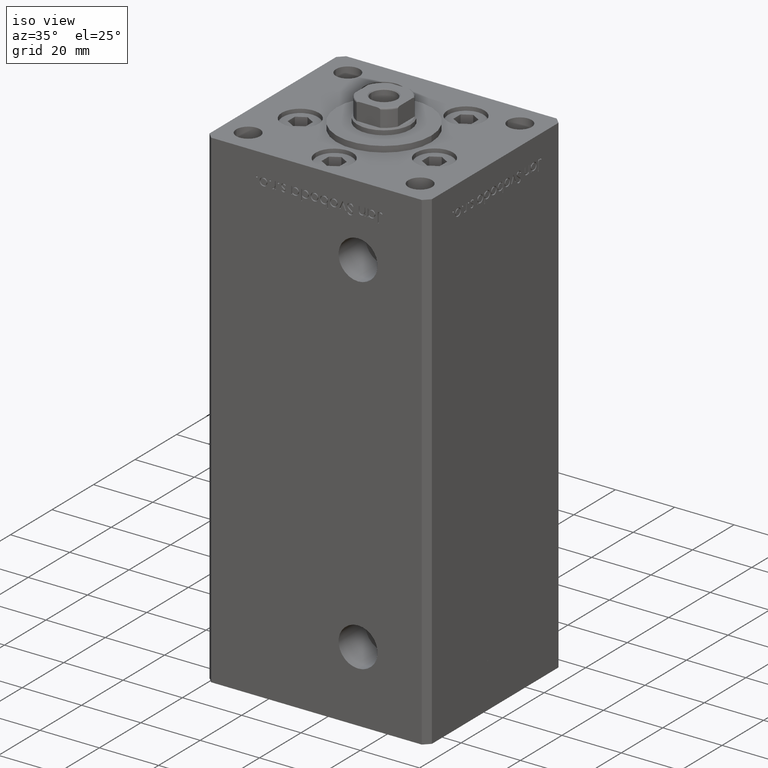
[diagram: clean part render]
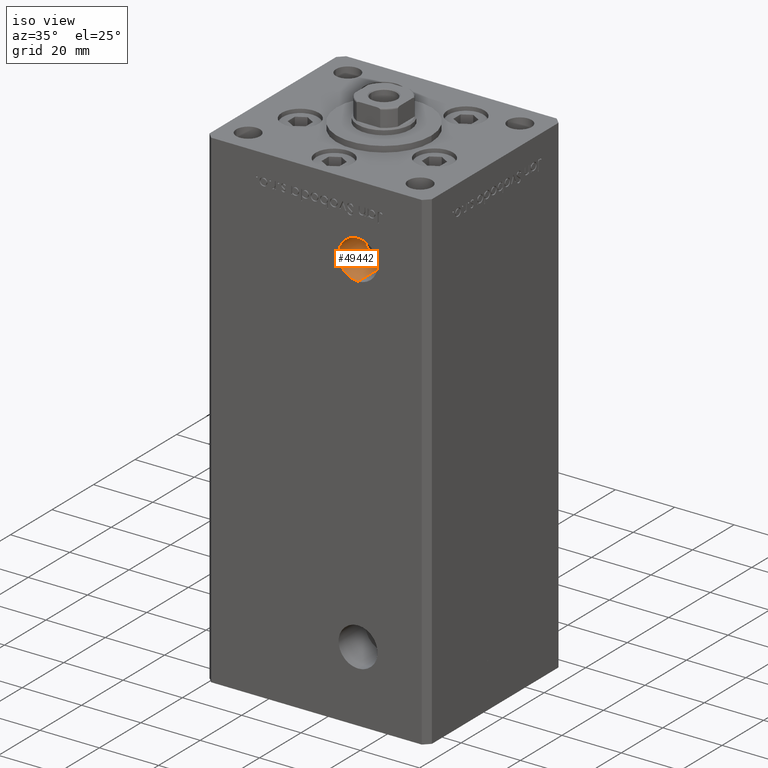
[diagram: same view with one face highlighted and labeled with its STEP entity id]
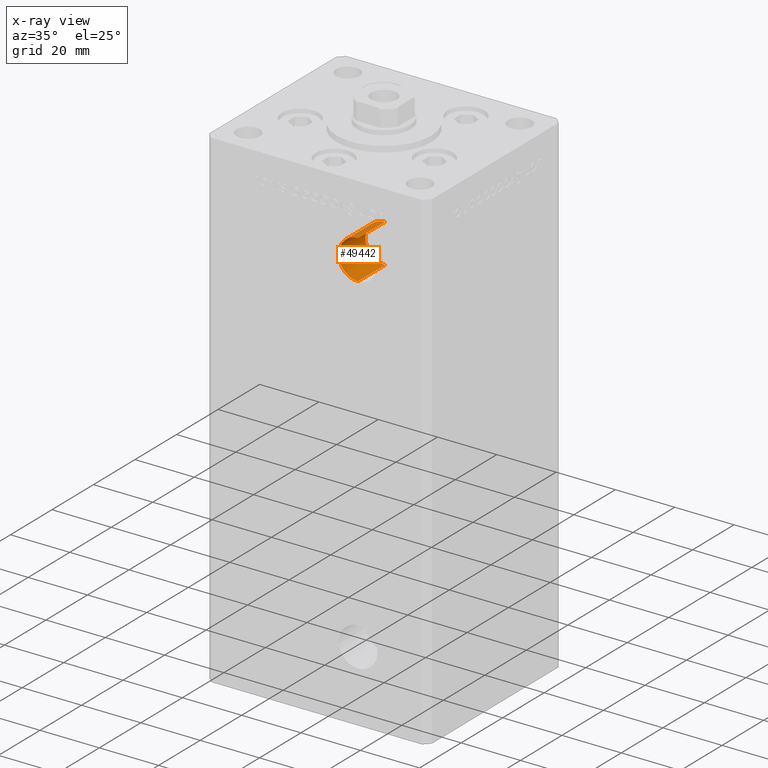
[diagram: x-ray of the same camera — body ghosted, the highlighted face saturated]
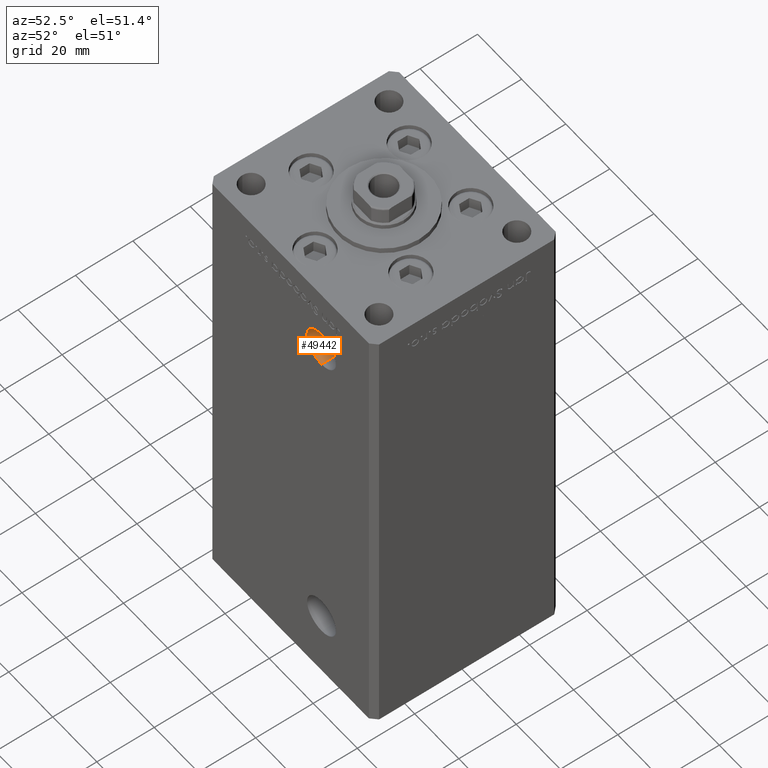
[diagram: same view with one face highlighted and labeled with its STEP entity id]
A machine part, iso view. The second image highlights one B-rep face of the part: STEP entity #49442.
The next image is the same camera in x-ray: the body ghosted, the highlighted face saturated — about 0% of this face is hidden behind the body in this view.
A second angle (auxiliary view) of the same face is appended — the face is thin or edge-on in the first view.
In plain terms, the highlighted cylindrical surface (edge-blend (fillet) strip) has radius 6.58 mm, axis along (-0, -1, -0).
Its self-contained STEP definition (entity closure, byte-faithful):
#4704 = VECTOR ( 'NONE', #46203, 1000.000000000000000 ) ;
#5647 = CARTESIAN_POINT ( 'NONE',  ( 13.99999999999999112, -19.50000000000000355, 127.0000000000000000 ) ) ;
#5677 = DIRECTION ( 'NONE',  ( -0.000000000000000000, 1.000000000000000000, -0.000000000000000000 ) ) ;
#8102 = FACE_OUTER_BOUND ( 'NONE', #23838, .T. ) ;
#9522 = CARTESIAN_POINT ( 'NONE',  ( 13.99999999999999112, -19.50000000000000355, 133.5800000000000125 ) ) ;
#13498 = LINE ( 'NONE', #9522, #4704 ) ;
#14663 = VERTEX_POINT ( 'NONE', #24053 ) ;
#15043 = ORIENTED_EDGE ( 'NONE', *, *, #42636, .T. ) ;
#15777 = AXIS2_PLACEMENT_3D ( 'NONE', #32982, #25345, #21920 ) ;
#18136 = EDGE_CURVE ( 'NONE', #14663, #50712, #31469, .T. ) ;
#19999 = VERTEX_POINT ( 'NONE', #20958 ) ;
#20958 = CARTESIAN_POINT ( 'NONE',  ( 13.99999999999999112, -32.50000000000000000, 133.5800000000000125 ) ) ;
#21318 = VERTEX_POINT ( 'NONE', #39998 ) ;
#21766 = DIRECTION ( 'NONE',  ( 0.000000000000000000, 0.000000000000000000, -1.000000000000000000 ) ) ;
#21920 = DIRECTION ( 'NONE',  ( 0.000000000000000000, 0.000000000000000000, -1.000000000000000000 ) ) ;
#22531 = CARTESIAN_POINT ( 'NONE',  ( 13.99999999999999112, -19.50000000000000355, 120.4200000000000017 ) ) ;
#22575 = AXIS2_PLACEMENT_3D ( 'NONE', #5647, #41288, #21766 ) ;
#23838 = EDGE_LOOP ( 'NONE', ( #15043, #52034, #38598, #33311 ) ) ;
#24053 = CARTESIAN_POINT ( 'NONE',  ( 13.99999999999999112, -19.50000000000000355, 120.4200000000000017 ) ) ;
#25345 = DIRECTION ( 'NONE',  ( -0.000000000000000000, 1.000000000000000000, -0.000000000000000000 ) ) ;
#26609 = CIRCLE ( 'NONE', #15777, 6.580000000000002736 ) ;
#27095 = AXIS2_PLACEMENT_3D ( 'NONE', #50004, #5677, #34423 ) ;
#29480 = EDGE_CURVE ( 'NONE', #50712, #19999, #48131, .T. ) ;
#31469 = LINE ( 'NONE', #22531, #44982 ) ;
#32982 = CARTESIAN_POINT ( 'NONE',  ( 13.99999999999999112, -19.50000000000000355, 127.0000000000000000 ) ) ;
#33311 = ORIENTED_EDGE ( 'NONE', *, *, #18136, .F. ) ;
#34423 = DIRECTION ( 'NONE',  ( 0.000000000000000000, 0.000000000000000000, -1.000000000000000000 ) ) ;
#38598 = ORIENTED_EDGE ( 'NONE', *, *, #29480, .F. ) ;
#39435 = EDGE_CURVE ( 'NONE', #21318, #19999, #13498, .T. ) ;
#39998 = CARTESIAN_POINT ( 'NONE',  ( 13.99999999999999112, -19.50000000000000355, 133.5800000000000125 ) ) ;
#41288 = DIRECTION ( 'NONE',  ( -0.000000000000000000, -1.000000000000000000, -0.000000000000000000 ) ) ;
#42636 = EDGE_CURVE ( 'NONE', #14663, #21318, #26609, .T. ) ;
#44003 = CARTESIAN_POINT ( 'NONE',  ( 13.99999999999999112, -32.50000000000000000, 120.4200000000000017 ) ) ;
#44982 = VECTOR ( 'NONE', #47045, 1000.000000000000000 ) ;
#45249 = CYLINDRICAL_SURFACE ( 'NONE', #22575, 6.580000000000002736 ) ;
#46203 = DIRECTION ( 'NONE',  ( -0.000000000000000000, -1.000000000000000000, -0.000000000000000000 ) ) ;
#47045 = DIRECTION ( 'NONE',  ( -0.000000000000000000, -1.000000000000000000, -0.000000000000000000 ) ) ;
#48131 = CIRCLE ( 'NONE', #27095, 6.580000000000002736 ) ;
#49442 = ADVANCED_FACE ( 'NONE', ( #8102 ), #45249, .F. ) ;
#50004 = CARTESIAN_POINT ( 'NONE',  ( 13.99999999999999112, -32.50000000000000000, 127.0000000000000000 ) ) ;
#50712 = VERTEX_POINT ( 'NONE', #44003 ) ;
#52034 = ORIENTED_EDGE ( 'NONE', *, *, #39435, .T. ) ;